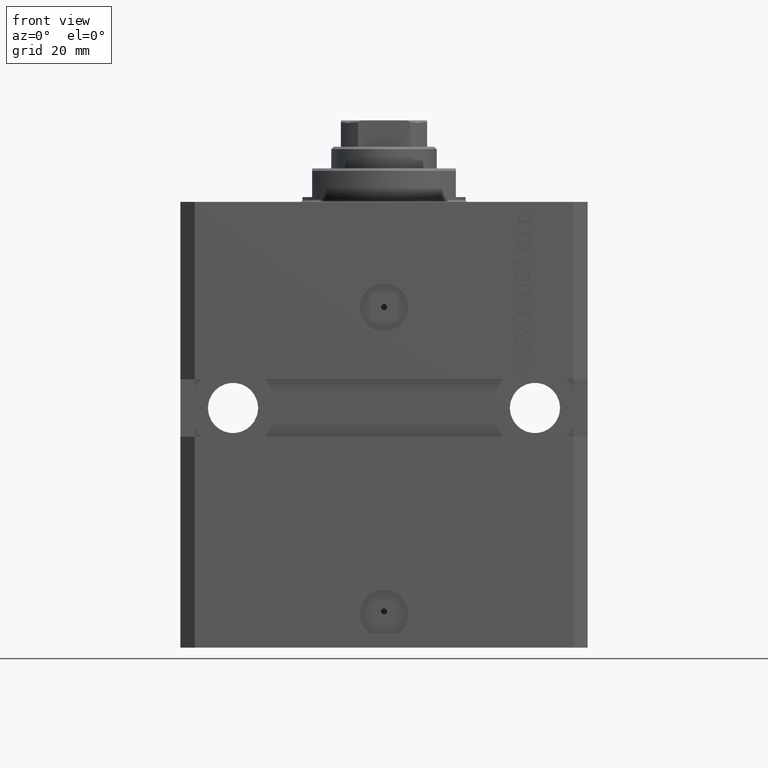
[diagram: clean part render]
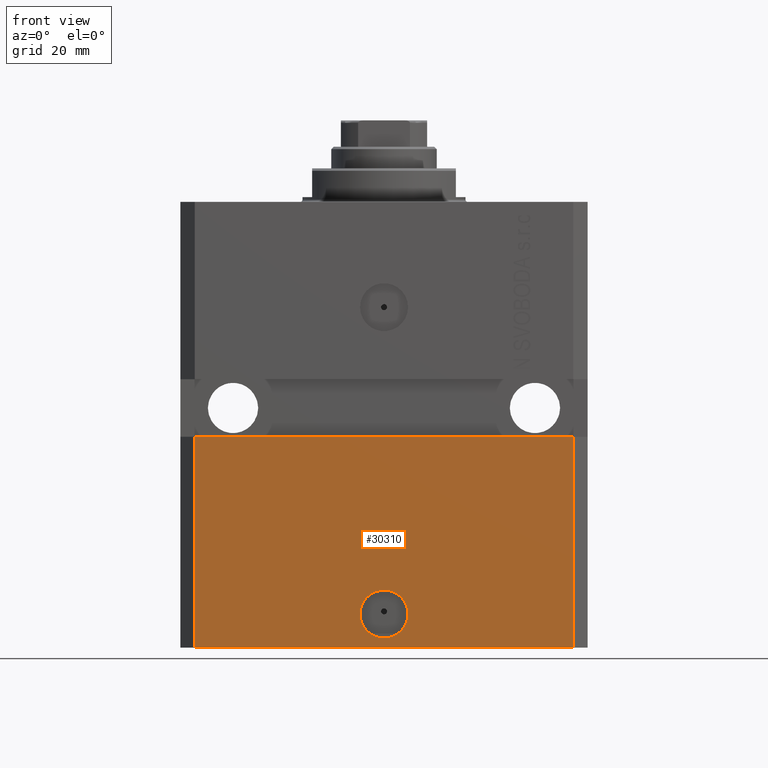
[diagram: same view with one face highlighted and labeled with its STEP entity id]
A machine part, front view. The second image highlights one B-rep face of the part: STEP entity #30310.
In plain terms, the highlighted planar face has unit normal (0, -1, 0).
Its self-contained STEP definition (entity closure, byte-faithful):
#1111 = CARTESIAN_POINT ( 'NONE',  ( -39.50000000000000711, -31.50000000000000000, -93.00000000000000000 ) ) ;
#1280 = VERTEX_POINT ( 'NONE', #12270 ) ;
#1452 = ORIENTED_EDGE ( 'NONE', *, *, #1812, .T. ) ;
#1812 = EDGE_CURVE ( 'NONE', #3248, #37853, #2560, .T. ) ;
#2475 = VERTEX_POINT ( 'NONE', #44772 ) ;
#2560 = LINE ( 'NONE', #44307, #12014 ) ;
#3248 = VERTEX_POINT ( 'NONE', #1111 ) ;
#4427 = DIRECTION ( 'NONE',  ( 0.000000000000000000, 0.000000000000000000, 1.000000000000000000 ) ) ;
#6941 = DIRECTION ( 'NONE',  ( 1.000000000000000000, 0.000000000000000000, 0.000000000000000000 ) ) ;
#7043 = PLANE ( 'NONE',  #40349 ) ;
#7106 = ORIENTED_EDGE ( 'NONE', *, *, #11196, .F. ) ;
#7412 = CARTESIAN_POINT ( 'NONE',  ( -39.50000000000000711, -31.50000000000000000, -93.00000000000000000 ) ) ;
#7741 = VECTOR ( 'NONE', #4427, 1000.000000000000000 ) ;
#10396 = DIRECTION ( 'NONE',  ( 1.176083712526788232E-16, -1.000000000000000000, 0.000000000000000000 ) ) ;
#10436 = CARTESIAN_POINT ( 'NONE',  ( 39.50000000000000711, -31.50000000000000000, -93.00000000000000000 ) ) ;
#10470 = LINE ( 'NONE', #24230, #39165 ) ;
#11196 = EDGE_CURVE ( 'NONE', #3248, #1280, #38837, .T. ) ;
#11741 = CARTESIAN_POINT ( 'NONE',  ( 0.000000000000000000, -31.50000000000000000, -86.00000000000000000 ) ) ;
#12014 = VECTOR ( 'NONE', #30786, 1000.000000000000000 ) ;
#12270 = CARTESIAN_POINT ( 'NONE',  ( -39.50000000000000000, -31.50000000000000711, -48.99999999999999289 ) ) ;
#13264 = CARTESIAN_POINT ( 'NONE',  ( -39.50000000000000711, -31.50000000000000000, -93.00000000000000000 ) ) ;
#15572 = AXIS2_PLACEMENT_3D ( 'NONE', #27159, #10396, #6941 ) ;
#17373 = DIRECTION ( 'NONE',  ( 0.000000000000000000, -0.000000000000000000, -1.000000000000000000 ) ) ;
#17535 = ORIENTED_EDGE ( 'NONE', *, *, #44712, .F. ) ;
#18567 = ORIENTED_EDGE ( 'NONE', *, *, #25807, .T. ) ;
#20364 = FACE_BOUND ( 'NONE', #41666, .T. ) ;
#21335 = CIRCLE ( 'NONE', #22808, 5.000000000000006217 ) ;
#22808 = AXIS2_PLACEMENT_3D ( 'NONE', #11741, #43601, #25726 ) ;
#24230 = CARTESIAN_POINT ( 'NONE',  ( -42.50000000000000000, -31.50000000000000711, -48.99999999999999289 ) ) ;
#24302 = EDGE_LOOP ( 'NONE', ( #17535, #7106, #1452, #18567 ) ) ;
#25726 = DIRECTION ( 'NONE',  ( 1.000000000000000000, 0.000000000000000000, 0.000000000000000000 ) ) ;
#25807 = EDGE_CURVE ( 'NONE', #37853, #35641, #27079, .T. ) ;
#26614 = CARTESIAN_POINT ( 'NONE',  ( 39.50000000000000711, -31.50000000000000000, -93.00000000000000000 ) ) ;
#27079 = LINE ( 'NONE', #26614, #27776 ) ;
#27159 = CARTESIAN_POINT ( 'NONE',  ( 0.000000000000000000, -31.50000000000000000, -86.00000000000000000 ) ) ;
#27776 = VECTOR ( 'NONE', #44720, 1000.000000000000000 ) ;
#30310 = ADVANCED_FACE ( 'NONE', ( #20364, #38239 ), #7043, .T. ) ;
#30786 = DIRECTION ( 'NONE',  ( 1.000000000000000000, 0.000000000000000000, 0.000000000000000000 ) ) ;
#30972 = CARTESIAN_POINT ( 'NONE',  ( 5.000000000000006217, -31.50000000000000000, -86.00000000000000000 ) ) ;
#30982 = EDGE_CURVE ( 'NONE', #2475, #37168, #21335, .T. ) ;
#32204 = ORIENTED_EDGE ( 'NONE', *, *, #35238, .F. ) ;
#35238 = EDGE_CURVE ( 'NONE', #37168, #2475, #42666, .T. ) ;
#35406 = CARTESIAN_POINT ( 'NONE',  ( 39.50000000000001421, -31.49999999999999289, -48.99999999999999289 ) ) ;
#35641 = VERTEX_POINT ( 'NONE', #35406 ) ;
#37168 = VERTEX_POINT ( 'NONE', #30972 ) ;
#37627 = ORIENTED_EDGE ( 'NONE', *, *, #30982, .F. ) ;
#37853 = VERTEX_POINT ( 'NONE', #10436 ) ;
#38239 = FACE_OUTER_BOUND ( 'NONE', #24302, .T. ) ;
#38837 = LINE ( 'NONE', #7412, #7741 ) ;
#39165 = VECTOR ( 'NONE', #40982, 1000.000000000000000 ) ;
#40349 = AXIS2_PLACEMENT_3D ( 'NONE', #13264, #41230, #17373 ) ;
#40982 = DIRECTION ( 'NONE',  ( 1.000000000000000000, 1.632680918566406300E-16, 0.000000000000000000 ) ) ;
#41230 = DIRECTION ( 'NONE',  ( 0.000000000000000000, -1.000000000000000000, 0.000000000000000000 ) ) ;
#41666 = EDGE_LOOP ( 'NONE', ( #32204, #37627 ) ) ;
#42666 = CIRCLE ( 'NONE', #15572, 5.000000000000006217 ) ;
#43601 = DIRECTION ( 'NONE',  ( 1.176083712526788232E-16, -1.000000000000000000, 0.000000000000000000 ) ) ;
#44307 = CARTESIAN_POINT ( 'NONE',  ( -39.50000000000000711, -31.50000000000000000, -93.00000000000000000 ) ) ;
#44712 = EDGE_CURVE ( 'NONE', #1280, #35641, #10470, .T. ) ;
#44720 = DIRECTION ( 'NONE',  ( 0.000000000000000000, 0.000000000000000000, 1.000000000000000000 ) ) ;
#44772 = CARTESIAN_POINT ( 'NONE',  ( -5.000000000000006217, -31.50000000000000000, -86.00000000000000000 ) ) ;